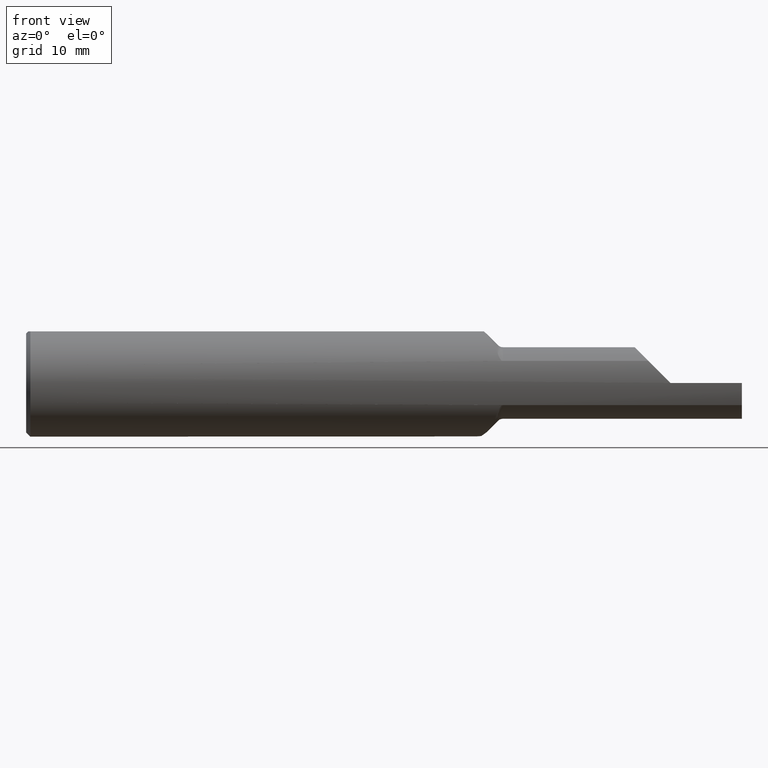
[diagram: clean part render]
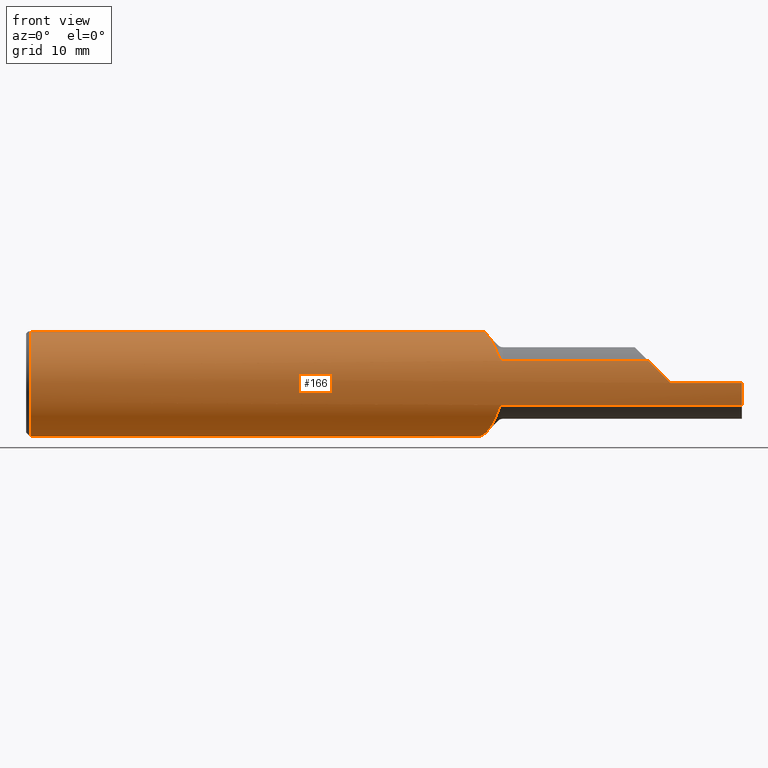
[diagram: same view with one face highlighted and labeled with its STEP entity id]
A machine part, front view. The second image highlights one B-rep face of the part: STEP entity #166.
In plain terms, the highlighted cylindrical surface (partial cylindrical patch) has radius 4.7587 mm, axis along (-1, -0, -0).
Its self-contained STEP definition (entity closure, byte-faithful):
#1 = CARTESIAN_POINT ( 'NONE',  ( 2.500000000000000000, -0.05073361804563106953, 0.1803500000000000381 ) ) ;
#12 = CARTESIAN_POINT ( 'NONE',  ( 1.647677669529663769, -0.1577425422176858549, -0.1010807245457885778 ) ) ;
#17 = ORIENTED_EDGE ( 'NONE', *, *, #156, .T. ) ;
#20 = VECTOR ( 'NONE', #664, 39.37007874015748143 ) ;
#23 = VERTEX_POINT ( 'NONE', #655 ) ;
#24 = CARTESIAN_POINT ( 'NONE',  ( 1.641809946652521113, -0.1468449295534856869, -0.1167369480987126007 ) ) ;
#32 = CARTESIAN_POINT ( 'NONE',  ( 1.520172998329585301, 0.1878056362616669639, -0.001742610769309108293 ) ) ;
#38 = DIRECTION ( 'NONE',  ( 0.000000000000000000, 0.000000000000000000, 1.000000000000000000 ) ) ;
#42 = ORIENTED_EDGE ( 'NONE', *, *, #243, .T. ) ;
#43 = CARTESIAN_POINT ( 'NONE',  ( 1.588512632015397052, -0.02549221419735801797, -0.1860111964125279183 ) ) ;
#53 = CARTESIAN_POINT ( 'NONE',  ( 1.665355339059327200, -0.1707639599170700795, -0.07706940050007714260 ) ) ;
#56 = VERTEX_POINT ( 'NONE', #814 ) ;
#57 = CARTESIAN_POINT ( 'NONE',  ( 1.625102823204431779, -0.1130155210225754908, 0.1497212379034123242 ) ) ;
#62 = ORIENTED_EDGE ( 'NONE', *, *, #358, .T. ) ;
#67 = LINE ( 'NONE', #396, #276 ) ;
#76 = EDGE_CURVE ( 'NONE', #590, #941, #415, .T. ) ;
#99 = FACE_OUTER_BOUND ( 'NONE', #217, .T. ) ;
#103 = B_SPLINE_CURVE_WITH_KNOTS ( 'NONE', 3,
 ( #372, #707, #578, #895 ),
 .UNSPECIFIED., .F., .F.,
 ( 4, 4 ),
 ( 7.799852739746135695E-07, 0.0006200624351649172304 ),
 .UNSPECIFIED. ) ;
#108 = CARTESIAN_POINT ( 'NONE',  ( 1.659149281104587370, -0.1694408866950491144, -0.07994379167839733846 ) ) ;
#111 = CARTESIAN_POINT ( 'NONE',  ( 1.597805746031308871, -0.04949128757996134470, -0.1811094437879526842 ) ) ;
#119 = ORIENTED_EDGE ( 'NONE', *, *, #283, .T. ) ;
#121 = CARTESIAN_POINT ( 'NONE',  ( 1.607183623461200472, -0.07234999999999965070, -0.1728163765387992490 ) ) ;
#122 = DIRECTION ( 'NONE',  ( -1.000000000000000000, -0.000000000000000000, -0.000000000000000000 ) ) ;
#126 = CARTESIAN_POINT ( 'NONE',  ( 1.602477893930588815, -0.06110981857011851121, -0.1775221060694107400 ) ) ;
#128 = EDGE_CURVE ( 'NONE', #536, #258, #741, .T. ) ;
#131 = CARTESIAN_POINT ( 'NONE',  ( 1.521146235663013435, 0.1843168879482640354, -0.03420148451633126668 ) ) ;
#140 = VERTEX_POINT ( 'NONE', #982 ) ;
#141 = CARTESIAN_POINT ( 'NONE',  ( 1.621519615916160006, -0.1052610557576406647, 0.1552667971135523461 ) ) ;
#147 = DIRECTION ( 'NONE',  ( 1.000000000000000000, -0.000000000000000000, -0.000000000000000000 ) ) ;
#156 = EDGE_CURVE ( 'NONE', #140, #892, #157, .T. ) ;
#157 = B_SPLINE_CURVE_WITH_KNOTS ( 'NONE', 3,
 ( #328, #500, #909, #674, #822, #255, #580, #668, #985, #180 ),
 .UNSPECIFIED., .F., .F.,
 ( 4, 2, 2, 2, 4 ),
 ( 0.000000000000000000, 0.0001085685215048265949, 0.0002171370430096531898, 0.0004342740860193081143, 0.0008685481720386157949 ),
 .UNSPECIFIED. ) ;
#165 = VERTEX_POINT ( 'NONE', #825 ) ;
#166 = ADVANCED_FACE ( 'NONE', ( #99 ), #927, .T. ) ;
#180 = CARTESIAN_POINT ( 'NONE',  ( 1.647677669529663769, -0.1577425422176858272, 0.1010807245457886472 ) ) ;
#189 = DIRECTION ( 'NONE',  ( 0.000000000000000000, 0.000000000000000000, 1.000000000000000000 ) ) ;
#195 = CARTESIAN_POINT ( 'NONE',  ( 1.654964460073830690, -0.1669035892968261103, -0.08514482223591571253 ) ) ;
#197 = CARTESIAN_POINT ( 'NONE',  ( 1.529995236286230575, 0.1531585939589148737, 0.1086796373768308954 ) ) ;
#203 = CARTESIAN_POINT ( 'NONE',  ( 1.524547880979550740, 0.1722069005976020195, 0.07491720450804145726 ) ) ;
#209 = CARTESIAN_POINT ( 'NONE',  ( 1.520337763137152409, 0.1872124516334592592, -0.01487472210176726123 ) ) ;
#217 = EDGE_LOOP ( 'NONE', ( #320, #730, #119, #523, #632, #858, #17, #307, #953, #370, #303, #42, #836, #596, #422, #62 ) ) ;
#222 = EDGE_CURVE ( 'NONE', #165, #23, #977, .T. ) ;
#231 = DIRECTION ( 'NONE',  ( -1.000000000000000000, -0.000000000000000000, -0.000000000000000000 ) ) ;
#233 = CARTESIAN_POINT ( 'NONE',  ( 0.01500000000000079568, 0.000000000000000000, -0.1873499999999999888 ) ) ;
#243 = EDGE_CURVE ( 'NONE', #468, #460, #433, .T. ) ;
#251 = B_SPLINE_CURVE_WITH_KNOTS ( 'NONE', 3,
 ( #405, #736, #24, #435, #764, #349, #682, #268, #827, #463 ),
 .UNSPECIFIED., .F., .F.,
 ( 4, 2, 2, 2, 4 ),
 ( 0.0007161442845211683913, 0.001476352927346896758, 0.002236561570172625017, 0.002996770212998353493, 0.003756978855824081968 ),
 .UNSPECIFIED. ) ;
#255 = CARTESIAN_POINT ( 'NONE',  ( 1.656393178060182381, -0.1680115360107063693, 0.08292733185577300103 ) ) ;
#258 = VERTEX_POINT ( 'NONE', #783 ) ;
#259 = EDGE_CURVE ( 'NONE', #536, #767, #103, .T. ) ;
#263 = CARTESIAN_POINT ( 'NONE',  ( 1.663908902861727768, -0.1707639599170533984, -0.07706940050015195776 ) ) ;
#268 = CARTESIAN_POINT ( 'NONE',  ( 1.614430903969886089, -0.08938647639046511106, -0.1649182778269906446 ) ) ;
#270 = EDGE_CURVE ( 'NONE', #934, #681, #251, .T. ) ;
#273 = CARTESIAN_POINT ( 'NONE',  ( 1.660148460470593834, -0.1698665315290002198, -0.07903182304161922300 ) ) ;
#276 = VECTOR ( 'NONE', #231, 39.37007874015748143 ) ;
#279 = CARTESIAN_POINT ( 'NONE',  ( 1.522432072879413179, 0.1797268795620592108, -0.05330411249906012727 ) ) ;
#280 = B_SPLINE_CURVE_WITH_KNOTS ( 'NONE', 3,
 ( #670, #676, #687, #195, #519, #108, #273, #630, #263, #440 ),
 .UNSPECIFIED., .F., .F.,
 ( 4, 2, 2, 2, 4 ),
 ( 4.336808689942017736E-19, 0.0004304743692919198238, 0.0006457115539378841538, 0.0007533301462608733932, 0.0008609487385838625242 ),
 .UNSPECIFIED. ) ;
#283 = EDGE_CURVE ( 'NONE', #590, #165, #445, .T. ) ;
#284 = CARTESIAN_POINT ( 'NONE',  ( 1.541116425318793226, 0.1155509289413752388, -0.1480264012985756938 ) ) ;
#288 = LINE ( 'NONE', #705, #742 ) ;
#303 = ORIENTED_EDGE ( 'NONE', *, *, #808, .T. ) ;
#304 = CARTESIAN_POINT ( 'NONE',  ( 1.647677669529663769, -0.1577425422176858272, 0.1010807245457886472 ) ) ;
#307 = ORIENTED_EDGE ( 'NONE', *, *, #902, .F. ) ;
#320 = ORIENTED_EDGE ( 'NONE', *, *, #859, .F. ) ;
#328 = CARTESIAN_POINT ( 'NONE',  ( 1.665355339059327200, -0.1707639599170700795, 0.07706940050007714260 ) ) ;
#336 = DIRECTION ( 'NONE',  ( -1.000000000000000000, -0.000000000000000000, -0.000000000000000000 ) ) ;
#349 = CARTESIAN_POINT ( 'NONE',  ( 1.625101511466827686, -0.1130118820033055027, -0.1497209324072609760 ) ) ;
#350 = LINE ( 'NONE', #516, #905 ) ;
#358 = EDGE_CURVE ( 'NONE', #934, #455, #280, .T. ) ;
#361 = CARTESIAN_POINT ( 'NONE',  ( 1.558512342576673149, 0.06018334788945470942, -0.1778582784703288955 ) ) ;
#366 = CARTESIAN_POINT ( 'NONE',  ( 1.561652342510382763, 0.05073361804563567001, 0.1803500000000000381 ) ) ;
#367 = CARTESIAN_POINT ( 'NONE',  ( 0.01500000000000079568, 0.000000000000000000, 0.000000000000000000 ) ) ;
#370 = ORIENTED_EDGE ( 'NONE', *, *, #128, .T. ) ;
#371 = CARTESIAN_POINT ( 'NONE',  ( 1.534238480591338494, 0.1386485486275686463, -0.1261636421672477637 ) ) ;
#372 = CARTESIAN_POINT ( 'NONE',  ( 1.598359171801058576, -0.05073361804563105565, 0.1803500000000000381 ) ) ;
#385 = CARTESIAN_POINT ( 'NONE',  ( 1.635467495936204774, -0.1347107488173135970, 0.1315628174615315893 ) ) ;
#389 = CARTESIAN_POINT ( 'NONE',  ( 1.614374853501117979, -0.08925789740646652981, 0.1649869567441344109 ) ) ;
#393 = EDGE_CURVE ( 'NONE', #23, #980, #943, .T. ) ;
#396 = CARTESIAN_POINT ( 'NONE',  ( 2.028999999999999915, -0.1707639599170700795, -0.07706940050007714260 ) ) ;
#398 = CARTESIAN_POINT ( 'NONE',  ( 1.598359171801058576, -0.05073361804563105565, 0.1803500000000000381 ) ) ;
#405 = CARTESIAN_POINT ( 'NONE',  ( 1.647677669529663769, -0.1577425422176858549, -0.1010807245457885778 ) ) ;
#415 = CIRCLE ( 'NONE', #872, 0.1873499999999999888 ) ;
#416 = DIRECTION ( 'NONE',  ( 0.000000000000000000, 0.000000000000000000, -1.000000000000000000 ) ) ;
#422 = ORIENTED_EDGE ( 'NONE', *, *, #270, .F. ) ;
#433 = CIRCLE ( 'NONE', #658, 0.1873499999999999888 ) ;
#435 = CARTESIAN_POINT ( 'NONE',  ( 1.635357923537703595, -0.1342337378524100511, -0.1310429395623439741 ) ) ;
#438 = CARTESIAN_POINT ( 'NONE',  ( 1.537505014431014727, 0.1275766949525765082, 0.1377888583164319225 ) ) ;
#440 = CARTESIAN_POINT ( 'NONE',  ( 1.665355339059327200, -0.1707639599170700795, -0.07706940050007714260 ) ) ;
#445 = LINE ( 'NONE', #837, #573 ) ;
#452 = CARTESIAN_POINT ( 'NONE',  ( 1.553874789929541089, 0.07453730533396558944, 0.1723478690588709783 ) ) ;
#455 = VERTEX_POINT ( 'NONE', #53 ) ;
#457 = CARTESIAN_POINT ( 'NONE',  ( 1.570779348551172072, 0.02364555254899046097, -0.1862697665699595551 ) ) ;
#460 = VERTEX_POINT ( 'NONE', #569 ) ;
#463 = CARTESIAN_POINT ( 'NONE',  ( 1.607183623461200472, -0.07234999999999965070, -0.1728163765387992490 ) ) ;
#467 = AXIS2_PLACEMENT_3D ( 'NONE', #852, #122, #189 ) ;
#468 = VERTEX_POINT ( 'NONE', #233 ) ;
#482 = AXIS2_PLACEMENT_3D ( 'NONE', #1026, #147, #485 ) ;
#485 = DIRECTION ( 'NONE',  ( 0.000000000000000000, 0.000000000000000000, -1.000000000000000000 ) ) ;
#500 = CARTESIAN_POINT ( 'NONE',  ( 1.663899932622418198, -0.1707639599170701350, 0.07706940050007711485 ) ) ;
#514 = CARTESIAN_POINT ( 'NONE',  ( 2.223545696637380331, -0.1872570901984921543, 0.02710430336261951054 ) ) ;
#516 = CARTESIAN_POINT ( 'NONE',  ( 2.028999999999999915, -0.1707639599170700795, 0.07706940050007714260 ) ) ;
#519 = CARTESIAN_POINT ( 'NONE',  ( 1.656405057452078333, -0.1680204051680165012, -0.08290941801067902572 ) ) ;
#523 = ORIENTED_EDGE ( 'NONE', *, *, #222, .T. ) ;
#525 = CARTESIAN_POINT ( 'NONE',  ( 1.543480051322620561, 0.1077969305866319782, 0.1537576155098320518 ) ) ;
#529 = CARTESIAN_POINT ( 'NONE',  ( 1.521224228460478001, 0.1840318009960000556, 0.03744608662781928610 ) ) ;
#532 = CARTESIAN_POINT ( 'NONE',  ( 2.173580599499921995, -0.1707639599170699407, 0.07706940050007732301 ) ) ;
#536 = VERTEX_POINT ( 'NONE', #398 ) ;
#537 = CARTESIAN_POINT ( 'NONE',  ( 1.532995427860555759, 0.1428842120803211213, -0.1213503740968142341 ) ) ;
#538 = CARTESIAN_POINT ( 'NONE',  ( 2.250000000000000000, 0.000000000000000000, 0.000000000000000000 ) ) ;
#539 = CARTESIAN_POINT ( 'NONE',  ( 2.500000000000000000, -0.1707639599170699962, -0.07706940050007722587 ) ) ;
#543 = CARTESIAN_POINT ( 'NONE',  ( 2.250000000000000000, -0.1873488724278853934, 0.0006500000000000633960 ) ) ;
#548 = CARTESIAN_POINT ( 'NONE',  ( 1.647677669529663769, -0.1577425422176858272, 0.1010807245457886472 ) ) ;
#569 = CARTESIAN_POINT ( 'NONE',  ( 0.01500000000000079568, 0.05073361804563106953, 0.1803500000000000381 ) ) ;
#573 = VECTOR ( 'NONE', #336, 39.37007874015748143 ) ;
#578 = CARTESIAN_POINT ( 'NONE',  ( 1.604251527663557164, -0.06534634870195799028, 0.1757484723364423351 ) ) ;
#580 = CARTESIAN_POINT ( 'NONE',  ( 1.654950128550691568, -0.1668915319110458872, 0.08516824821476294549 ) ) ;
#588 = CARTESIAN_POINT ( 'NONE',  ( 2.500000000000000000, -0.1873499999999998222, -6.429183357567480113E-17 ) ) ;
#590 = VERTEX_POINT ( 'NONE', #588 ) ;
#596 = ORIENTED_EDGE ( 'NONE', *, *, #738, .F. ) ;
#603 = DIRECTION ( 'NONE',  ( 1.000000000000000000, 0.000000000000000000, 0.000000000000000000 ) ) ;
#610 = CARTESIAN_POINT ( 'NONE',  ( 1.521509882952550630, 0.1830157774888623856, -0.04059932064178665284 ) ) ;
#613 = CARTESIAN_POINT ( 'NONE',  ( 1.522992082306586559, 0.1777339935978583807, -0.05960787101436536978 ) ) ;
#614 = DIRECTION ( 'NONE',  ( -1.000000000000000000, -0.000000000000000000, -0.000000000000000000 ) ) ;
#628 = CARTESIAN_POINT ( 'NONE',  ( 1.529558854539173618, 0.1547009345895635768, -0.1058752598168466730 ) ) ;
#630 = CARTESIAN_POINT ( 'NONE',  ( 1.662529687311021132, -0.1705378972963421114, -0.07757250268437207441 ) ) ;
#632 = ORIENTED_EDGE ( 'NONE', *, *, #393, .T. ) ;
#655 = CARTESIAN_POINT ( 'NONE',  ( 2.250000000000000000, -0.1873488724278853934, 0.0006500000000000633960 ) ) ;
#658 = AXIS2_PLACEMENT_3D ( 'NONE', #367, #699, #1013 ) ;
#664 = DIRECTION ( 'NONE',  ( -1.000000000000000000, -0.000000000000000000, -0.000000000000000000 ) ) ;
#668 = CARTESIAN_POINT ( 'NONE',  ( 1.651157602756840204, -0.1633531904446169636, 0.09187667485228873110 ) ) ;
#670 = CARTESIAN_POINT ( 'NONE',  ( 1.647677669529663769, -0.1577425422176858549, -0.1010807245457885778 ) ) ;
#674 = CARTESIAN_POINT ( 'NONE',  ( 1.660154356542653975, -0.1698681870263310800, 0.07902822400515265022 ) ) ;
#676 = CARTESIAN_POINT ( 'NONE',  ( 1.649285680703583612, -0.1606834653131298252, -0.09649123740443073249 ) ) ;
#680 = EDGE_CURVE ( 'NONE', #140, #980, #350, .T. ) ;
#681 = VERTEX_POINT ( 'NONE', #121 ) ;
#682 = CARTESIAN_POINT ( 'NONE',  ( 1.621587353908033879, -0.1054096907537714900, -0.1551669346804205873 ) ) ;
#683 = CARTESIAN_POINT ( 'NONE',  ( 1.538189419821468285, 0.1252997508203159693, -0.1398665203331845575 ) ) ;
#687 = CARTESIAN_POINT ( 'NONE',  ( 1.651158120796535345, -0.1633562859224049479, -0.09187193175627582364 ) ) ;
#694 = CARTESIAN_POINT ( 'NONE',  ( 1.551107762570095527, 0.08323016174429365144, -0.1683102574403324281 ) ) ;
#698 = CARTESIAN_POINT ( 'NONE',  ( 1.527954695071388480, 0.1602583907463168977, 0.09790328053815632037 ) ) ;
#699 = DIRECTION ( 'NONE',  ( 1.000000000000000000, -0.000000000000000000, -0.000000000000000000 ) ) ;
#705 = CARTESIAN_POINT ( 'NONE',  ( 2.500000000000000000, 0.05073361804563106953, 0.1803500000000000381 ) ) ;
#707 = CARTESIAN_POINT ( 'NONE',  ( 1.601310630883624908, -0.05814350708713277027, 0.1782655504275461877 ) ) ;
#717 = CARTESIAN_POINT ( 'NONE',  ( 1.641941235793675125, -0.1472510663291615729, 0.1174533028559262560 ) ) ;
#730 = ORIENTED_EDGE ( 'NONE', *, *, #76, .F. ) ;
#736 = CARTESIAN_POINT ( 'NONE',  ( 1.644854473388827731, -0.1525791435621191017, -0.1091385182950164873 ) ) ;
#738 = EDGE_CURVE ( 'NONE', #681, #56, #1040, .T. ) ;
#741 = LINE ( 'NONE', #1, #20 ) ;
#742 = VECTOR ( 'NONE', #949, 39.37007874015748143 ) ;
#751 = CARTESIAN_POINT ( 'NONE',  ( 2.500000000000000000, 0.000000000000000000, 0.000000000000000000 ) ) ;
#760 = EDGE_CURVE ( 'NONE', #460, #56, #288, .T. ) ;
#764 = CARTESIAN_POINT ( 'NONE',  ( 1.631976415317671902, -0.1274041427334708099, -0.1376816163806121318 ) ) ;
#767 = VERTEX_POINT ( 'NONE', #1046 ) ;
#777 = CARTESIAN_POINT ( 'NONE',  ( 1.557636035106981121, 0.06285457607314870465, 0.1769402963409190677 ) ) ;
#782 = CARTESIAN_POINT ( 'NONE',  ( 1.583895706846281115, -0.01311122781479178920, -0.1872918828694020432 ) ) ;
#783 = CARTESIAN_POINT ( 'NONE',  ( 0.01499999999999942525, -0.05073361804563293609, 0.1803500000000000381 ) ) ;
#795 = CARTESIAN_POINT ( 'NONE',  ( 1.610785728155224916, -0.08095404535085910791, 0.1692142718447749994 ) ) ;
#808 = EDGE_CURVE ( 'NONE', #258, #468, #973, .T. ) ;
#810 = CARTESIAN_POINT ( 'NONE',  ( 2.173580599499921995, -0.1707639599170699407, 0.07706940050007732301 ) ) ;
#814 = CARTESIAN_POINT ( 'NONE',  ( 1.561652342510382763, 0.05073361804563567001, 0.1803500000000000381 ) ) ;
#817 = DIRECTION ( 'NONE',  ( 1.000000000000000000, 0.000000000000000000, 0.000000000000000000 ) ) ;
#822 = CARTESIAN_POINT ( 'NONE',  ( 1.659127509227308117, -0.1694309564744251873, 0.07996482047444376795 ) ) ;
#825 = CARTESIAN_POINT ( 'NONE',  ( 2.250000000000000000, -0.1873499999999999610, -6.429183357567478880E-17 ) ) ;
#827 = CARTESIAN_POINT ( 'NONE',  ( 1.610783903532286399, -0.08094968702708886521, -0.1692160964677134338 ) ) ;
#834 = CARTESIAN_POINT ( 'NONE',  ( 1.523177002644261036, 0.1770736257016730097, 0.06256871632400125283 ) ) ;
#836 = ORIENTED_EDGE ( 'NONE', *, *, #760, .T. ) ;
#837 = CARTESIAN_POINT ( 'NONE',  ( 2.500000000000000000, -0.1873499999999999888, -6.429183357567480113E-17 ) ) ;
#838 = CARTESIAN_POINT ( 'NONE',  ( 1.562478857280754418, 0.04812493428509516391, -0.1814925034083489375 ) ) ;
#843 = CARTESIAN_POINT ( 'NONE',  ( 1.546798760652082994, 0.09699900128417564271, 0.1607818136651501806 ) ) ;
#850 = CARTESIAN_POINT ( 'NONE',  ( 1.547627288442569693, 0.09434647022735526134, -0.1623655635172079614 ) ) ;
#852 = CARTESIAN_POINT ( 'NONE',  ( 2.500000000000000000, 0.000000000000000000, 0.000000000000000000 ) ) ;
#855 = CARTESIAN_POINT ( 'NONE',  ( 1.534807027521195799, 0.1366915025519610805, 0.1287798571746312237 ) ) ;
#858 = ORIENTED_EDGE ( 'NONE', *, *, #680, .F. ) ;
#859 = EDGE_CURVE ( 'NONE', #941, #455, #67, .T. ) ;
#867 = CARTESIAN_POINT ( 'NONE',  ( 1.607183623461200472, -0.07234999999999965070, 0.1728163765387992490 ) ) ;
#872 = AXIS2_PLACEMENT_3D ( 'NONE', #751, #817, #416 ) ;
#892 = VERTEX_POINT ( 'NONE', #548 ) ;
#894 = AXIS2_PLACEMENT_3D ( 'NONE', #538, #614, #38 ) ;
#895 = CARTESIAN_POINT ( 'NONE',  ( 1.607183623461200472, -0.07234999999999965070, 0.1728163765387992490 ) ) ;
#902 = EDGE_CURVE ( 'NONE', #767, #892, #967, .T. ) ;
#905 = VECTOR ( 'NONE', #603, 39.37007874015748143 ) ;
#909 = CARTESIAN_POINT ( 'NONE',  ( 1.662523631617916386, -0.1705361967948134105, 0.07757619954458894185 ) ) ;
#922 = CARTESIAN_POINT ( 'NONE',  ( 1.530656052074582441, 0.1509087159451678317, -0.1112131773084089476 ) ) ;
#926 = CARTESIAN_POINT ( 'NONE',  ( 1.520621239219315468, 0.1861972792961229251, 0.02458794189566219229 ) ) ;
#927 = CYLINDRICAL_SURFACE ( 'NONE', #467, 0.1873499999999999888 ) ;
#934 = VERTEX_POINT ( 'NONE', #12 ) ;
#936 = CARTESIAN_POINT ( 'NONE',  ( 1.524926753194636220, 0.1708787332540030179, -0.07791196371509565011 ) ) ;
#941 = VERTEX_POINT ( 'NONE', #539 ) ;
#942 = CARTESIAN_POINT ( 'NONE',  ( 1.575054110130808205, 0.01139412105151804515, -0.1874041826882222039 ) ) ;
#943 =( BOUNDED_CURVE ( )  B_SPLINE_CURVE ( 3, ( #543, #514, #957, #810 ),
 .UNSPECIFIED., .F., .T. ) 
 B_SPLINE_CURVE_WITH_KNOTS ( ( 4, 4 ),
 ( 4.715858429565467524, 5.136341099405665744 ),
 .UNSPECIFIED. ) 
 CURVE ( )  GEOMETRIC_REPRESENTATION_ITEM ( )  RATIONAL_B_SPLINE_CURVE ( ( 1.000000000000000000, 0.9853203850599061564, 0.9853203850599061564, 1.000000000000000000 ) ) 
 REPRESENTATION_ITEM ( '' )  );
#949 = DIRECTION ( 'NONE',  ( 1.000000000000000000, 0.000000000000000000, 0.000000000000000000 ) ) ;
#953 = ORIENTED_EDGE ( 'NONE', *, *, #259, .F. ) ;
#957 = CARTESIAN_POINT ( 'NONE',  ( 2.197693056332493899, -0.1816464236030419233, 0.05295694366750571674 ) ) ;
#967 = B_SPLINE_CURVE_WITH_KNOTS ( 'NONE', 3,
 ( #867, #795, #389, #141, #57, #385, #717, #304 ),
 .UNSPECIFIED., .F., .F.,
 ( 4, 2, 2, 4 ),
 ( 0.0006200624351649172304, 0.001380856206457157544, 0.002141649977749397749, 0.003663237520333885965 ),
 .UNSPECIFIED. ) ;
#973 = CIRCLE ( 'NONE', #482, 0.1873499999999999888 ) ;
#977 = CIRCLE ( 'NONE', #894, 0.1873499999999999888 ) ;
#980 = VERTEX_POINT ( 'NONE', #532 ) ;
#982 = CARTESIAN_POINT ( 'NONE',  ( 1.665355339059327200, -0.1707639599170700795, 0.07706940050007714260 ) ) ;
#985 = CARTESIAN_POINT ( 'NONE',  ( 1.649285629790761432, -0.1606833721979551988, 0.09649138271627637209 ) ) ;
#1005 = CARTESIAN_POINT ( 'NONE',  ( 1.526563200756603900, 0.1651118022961632903, -0.08947527289251183680 ) ) ;
#1009 = CARTESIAN_POINT ( 'NONE',  ( 1.607183623461200472, -0.07234999999999965070, -0.1728163765387992490 ) ) ;
#1013 = DIRECTION ( 'NONE',  ( 0.000000000000000000, 0.000000000000000000, -1.000000000000000000 ) ) ;
#1026 = CARTESIAN_POINT ( 'NONE',  ( 0.01500000000000079568, 0.000000000000000000, 0.000000000000000000 ) ) ;
#1040 = B_SPLINE_CURVE_WITH_KNOTS ( 'NONE', 3,
 ( #1009, #126, #111, #43, #782, #942, #457, #838, #361, #694, #850, #284, #683, #371, #537, #922, #628, #1005, #936, #613, #279, #610, #131, #209, #32, #926, #529, #834, #203, #698, #197, #855, #438, #525, #843, #452, #777, #366 ),
 .UNSPECIFIED., .F., .F.,
 ( 4, 2, 2, 2, 2, 2, 2, 2, 2, 2, 2, 2, 2, 2, 2, 2, 2, 2, 4 ),
 ( 0.003756978855824081968, 0.004750606070745806882, 0.005744233285667532662, 0.006737860500589257576, 0.007731487715510982489, 0.008725114930432707402, 0.009718742145354432316, 0.01021555575281529391, 0.01071236936027615376, 0.01170599657519787520, 0.01220281018265873679, 0.01269962379011959838, 0.01369325100504131809, 0.01468687821996304127, 0.01568050543488476445, 0.01667413264980648416, 0.01766775986472820387, 0.01866138707964992705, 0.01965501429457165022 ),
 .UNSPECIFIED. ) ;
#1046 = CARTESIAN_POINT ( 'NONE',  ( 1.607183623461200472, -0.07234999999999965070, 0.1728163765387992490 ) ) ;